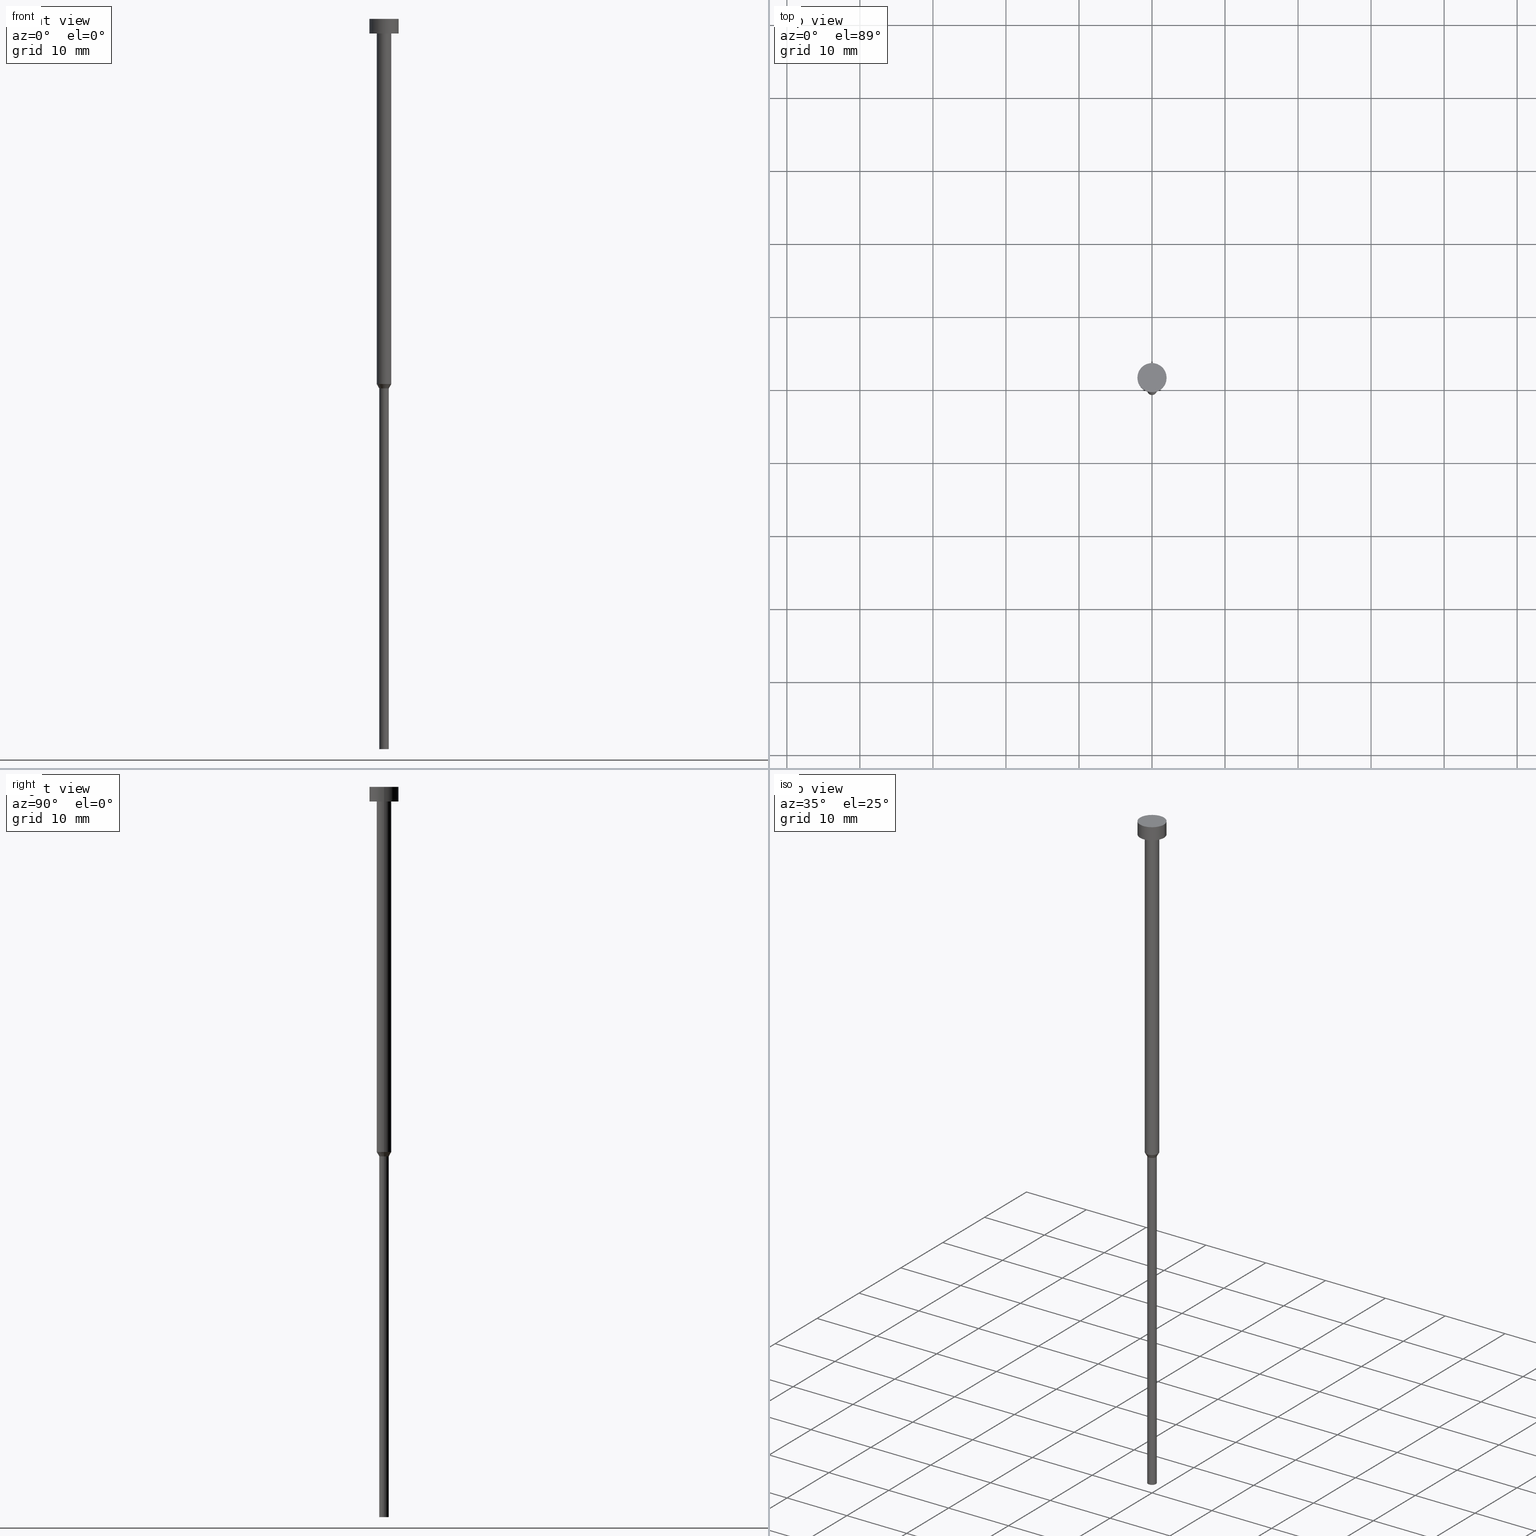
[diagram: canonical four-view strip — front | top / right | iso, engineering-drawing reading convention]
A machine part, canonical four-view strip (front | top / right | iso — engineering-drawing reading convention). The complete STEP part file that produces these views, byte-faithful:
ISO-10303-21;
HEADER;
FILE_DESCRIPTION (( 'STEP AP203' ),
    '1' );
FILE_NAME ('98b2.STEP',
    '2023-02-13T12:40:22',
    ( '' ),
    ( '' ),
    'SwSTEP 2.0',
    'SolidWorks 2019',
    '' );
FILE_SCHEMA (( 'CONFIG_CONTROL_DESIGN' ));
ENDSEC;

DATA;
#1 = PERSON_AND_ORGANIZATION ( #281, #349 ) ;
#2 = PLANE ( 'NONE',  #27 ) ;
#3 = CALENDAR_DATE ( 2023, 13, 2 ) ;
#4 = LINE ( 'NONE', #35, #39 ) ;
#5 = PERSON_AND_ORGANIZATION ( #281, #349 ) ;
#6 =( NAMED_UNIT ( * ) PLANE_ANGLE_UNIT ( ) SI_UNIT ( $, .RADIAN. ) );
#7 = ORIENTED_EDGE ( 'NONE', *, *, #244, .T. ) ;
#8 = EDGE_CURVE ( 'NONE', #11, #106, #150, .T. ) ;
#9 = EDGE_LOOP ( 'NONE', ( #21, #338 ) ) ;
#10 = DIRECTION ( 'NONE',  ( 1.000000000000000000, 0.000000000000000000, 0.000000000000000000 ) ) ;
#11 = VERTEX_POINT ( 'NONE', #62 ) ;
#12 = CIRCLE ( 'NONE', #56, 2.000000000000000000 ) ;
#13 = FACE_BOUND ( 'NONE', #9, .T. ) ;
#14 = PLANE ( 'NONE',  #134 ) ;
#15 = EDGE_CURVE ( 'NONE', #165, #106, #226, .T. ) ;
#16 = DIRECTION ( 'NONE',  ( -0.000000000000000000, -0.000000000000000000, 1.000000000000000000 ) ) ;
#17 = ORIENTED_EDGE ( 'NONE', *, *, #122, .T. ) ;
#18 = DIRECTION ( 'NONE',  ( 0.5000000000000006661, 0.000000000000000000, 0.8660254037844382635 ) ) ;
#19 = DIRECTION ( 'NONE',  ( -0.000000000000000000, -0.000000000000000000, 1.000000000000000000 ) ) ;
#20 = EDGE_CURVE ( 'NONE', #279, #258, #254, .T. ) ;
#21 = ORIENTED_EDGE ( 'NONE', *, *, #37, .T. ) ;
#22 = APPLICATION_PROTOCOL_DEFINITION ( 'international standard', 'config_control_design', 1994, #335 ) ;
#23 = CARTESIAN_POINT ( 'NONE',  ( 0.000000000000000000, 0.000000000000000000, 0.000000000000000000 ) ) ;
#24 = DIRECTION ( 'NONE',  ( 0.000000000000000000, 0.000000000000000000, 1.000000000000000000 ) ) ;
#25 = DIRECTION ( 'NONE',  ( -0.000000000000000000, -0.000000000000000000, 1.000000000000000000 ) ) ;
#26 = EDGE_LOOP ( 'NONE', ( #118, #292 ) ) ;
#27 = AXIS2_PLACEMENT_3D ( 'NONE', #331, #255, #303 ) ;
#28 = ADVANCED_FACE ( 'NONE', ( #145 ), #206, .T. ) ;
#29 = PERSON_AND_ORGANIZATION ( #281, #349 ) ;
#30 = COORDINATED_UNIVERSAL_TIME_OFFSET ( 1, 0, .AHEAD. ) ;
#31 = CARTESIAN_POINT ( 'NONE',  ( 0.000000000000000000, 0.000000000000000000, -100.0000000000000000 ) ) ;
#32 = PERSON_AND_ORGANIZATION_ROLE ( 'classification_officer' ) ;
#33 = ORIENTED_EDGE ( 'NONE', *, *, #342, .T. ) ;
#34 = CIRCLE ( 'NONE', #74, 1.000000000000003553 ) ;
#35 = CARTESIAN_POINT ( 'NONE',  ( -1.000000000000003109, 1.224646799147356905E-16, -50.00000000000000000 ) ) ;
#36 = DIRECTION ( 'NONE',  ( 1.000000000000000000, 0.000000000000000000, 0.000000000000000000 ) ) ;
#37 = EDGE_CURVE ( 'NONE', #295, #103, #34, .T. ) ;
#38 = DIRECTION ( 'NONE',  ( 1.000000000000000000, 0.000000000000000000, 0.000000000000000000 ) ) ;
#39 = VECTOR ( 'NONE', #251, 1000.000000000000000 ) ;
#40 = ORIENTED_EDGE ( 'NONE', *, *, #15, .T. ) ;
#41 = LOCAL_TIME ( 13, 40, 22.00000000000000000, #304 ) ;
#42 = FACE_OUTER_BOUND ( 'NONE', #215, .T. ) ;
#43 = ORIENTED_EDGE ( 'NONE', *, *, #20, .F. ) ;
#44 = EDGE_LOOP ( 'NONE', ( #124, #178, #60, #153 ) ) ;
#45 = DIRECTION ( 'NONE',  ( -0.000000000000000000, -0.000000000000000000, 1.000000000000000000 ) ) ;
#46 = ORIENTED_EDGE ( 'NONE', *, *, #8, .T. ) ;
#47 = CYLINDRICAL_SURFACE ( 'NONE', #324, 2.000000000000000000 ) ;
#48 = APPROVAL_STATUS ( 'not_yet_approved' ) ;
#49 = DIRECTION ( 'NONE',  ( 1.000000000000000000, 0.000000000000000000, 0.000000000000000000 ) ) ;
#50 = VERTEX_POINT ( 'NONE', #91 ) ;
#51 = CARTESIAN_POINT ( 'NONE',  ( -2.000000000000000000, 2.449293598294706414E-16, -2.000000000000000444 ) ) ;
#52 = AXIS2_PLACEMENT_3D ( 'NONE', #31, #138, #329 ) ;
#53 = CC_DESIGN_APPROVAL ( #290, ( #257 ) ) ;
#54 = COORDINATED_UNIVERSAL_TIME_OFFSET ( 1, 0, .AHEAD. ) ;
#55 = CARTESIAN_POINT ( 'NONE',  ( -1.000000000000003331, 1.224646799147357151E-16, 0.000000000000000000 ) ) ;
#56 = AXIS2_PLACEMENT_3D ( 'NONE', #348, #95, #297 ) ;
#57 = CARTESIAN_POINT ( 'NONE',  ( 0.000000000000000000, 0.000000000000000000, -2.000000000000000444 ) ) ;
#58 = FACE_OUTER_BOUND ( 'NONE', #355, .T. ) ;
#59 = ORIENTED_EDGE ( 'NONE', *, *, #15, .F. ) ;
#60 = ORIENTED_EDGE ( 'NONE', *, *, #37, .F. ) ;
#61 = ADVANCED_FACE ( 'NONE', ( #89 ), #14, .T. ) ;
#62 = CARTESIAN_POINT ( 'NONE',  ( -0.6500000000000000222, 7.960204194457795477E-17, -100.0000000000000000 ) ) ;
#63 = CC_DESIGN_DATE_AND_TIME_ASSIGNMENT ( #352, #243, ( #64 ) ) ;
#64 = SECURITY_CLASSIFICATION ( '', '', #136 ) ;
#65 = EDGE_LOOP ( 'NONE', ( #212, #141, #272, #129 ) ) ;
#66 = EDGE_CURVE ( 'NONE', #103, #295, #282, .T. ) ;
#67 = CARTESIAN_POINT ( 'NONE',  ( -0.6500000000000000222, 7.960204194457795477E-17, 0.000000000000000000 ) ) ;
#68 = CC_DESIGN_PERSON_AND_ORGANIZATION_ASSIGNMENT ( #139, #245, ( #257 ) ) ;
#69 = AXIS2_PLACEMENT_3D ( 'NONE', #75, #24, #227 ) ;
#70 = AXIS2_PLACEMENT_3D ( 'NONE', #152, #294, #325 ) ;
#71 = CARTESIAN_POINT ( 'NONE',  ( 2.000000000000000000, 0.000000000000000000, -2.000000000000000444 ) ) ;
#72 = CARTESIAN_POINT ( 'NONE',  ( 1.000000000000003109, 0.000000000000000000, -50.00000000000000000 ) ) ;
#73 = ORIENTED_EDGE ( 'NONE', *, *, #299, .T. ) ;
#74 = AXIS2_PLACEMENT_3D ( 'NONE', #234, #235, #339 ) ;
#75 = CARTESIAN_POINT ( 'NONE',  ( 0.000000000000000000, 0.000000000000000000, 0.000000000000000000 ) ) ;
#76 = CARTESIAN_POINT ( 'NONE',  ( -2.000000000000000000, 2.449293598294706414E-16, 0.000000000000000000 ) ) ;
#77 = CARTESIAN_POINT ( 'NONE',  ( 2.000000000000000000, 0.000000000000000000, 0.000000000000000000 ) ) ;
#78 = CALENDAR_DATE ( 2023, 13, 2 ) ;
#79 = DIRECTION ( 'NONE',  ( -0.000000000000000000, -0.000000000000000000, 1.000000000000000000 ) ) ;
#80 = EDGE_LOOP ( 'NONE', ( #173, #115, #7, #261 ) ) ;
#81 = PERSON_AND_ORGANIZATION ( #281, #349 ) ;
#82 = AXIS2_PLACEMENT_3D ( 'NONE', #285, #236, #10 ) ;
#83 = AXIS2_PLACEMENT_3D ( 'NONE', #171, #246, #220 ) ;
#84 = LINE ( 'NONE', #77, #305 ) ;
#85 = ADVANCED_FACE ( 'NONE', ( #13, #316 ), #260, .T. ) ;
#86 = AXIS2_PLACEMENT_3D ( 'NONE', #88, #172, #237 ) ;
#87 = AXIS2_PLACEMENT_3D ( 'NONE', #57, #112, #190 ) ;
#88 = CARTESIAN_POINT ( 'NONE',  ( 0.000000000000000000, 0.000000000000000000, -50.60621778264911086 ) ) ;
#89 = FACE_OUTER_BOUND ( 'NONE', #26, .T. ) ;
#90 = DIRECTION ( 'NONE',  ( 1.000000000000000000, 0.000000000000000000, 0.000000000000000000 ) ) ;
#91 = CARTESIAN_POINT ( 'NONE',  ( 0.6500000000000000222, 0.000000000000000000, -100.0000000000000000 ) ) ;
#92 = VERTEX_POINT ( 'NONE', #72 ) ;
#93 = CARTESIAN_POINT ( 'NONE',  ( 0.000000000000000000, 0.000000000000000000, 0.000000000000000000 ) ) ;
#94 = AXIS2_PLACEMENT_3D ( 'NONE', #209, #19, #308 ) ;
#95 = DIRECTION ( 'NONE',  ( -0.000000000000000000, -0.000000000000000000, 1.000000000000000000 ) ) ;
#96 = DIRECTION ( 'NONE',  ( -0.000000000000000000, -0.000000000000000000, 1.000000000000000000 ) ) ;
#97 = CARTESIAN_POINT ( 'NONE',  ( -0.6500000000000000222, 7.960204194457795477E-17, -50.60621778264911086 ) ) ;
#98 = PERSON_AND_ORGANIZATION ( #281, #349 ) ;
#99 = ORIENTED_EDGE ( 'NONE', *, *, #319, .F. ) ;
#100 = AXIS2_PLACEMENT_3D ( 'NONE', #242, #96, #214 ) ;
#101 = PERSON_AND_ORGANIZATION ( #281, #349 ) ;
#102 = LINE ( 'NONE', #354, #288 ) ;
#103 = VERTEX_POINT ( 'NONE', #211 ) ;
#104 = CALENDAR_DATE ( 2023, 13, 2 ) ;
#105 = CARTESIAN_POINT ( 'NONE',  ( 0.000000000000000000, 0.000000000000000000, 0.000000000000000000 ) ) ;
#106 = VERTEX_POINT ( 'NONE', #97 ) ;
#107 = APPROVAL_DATE_TIME ( #192, #222 ) ;
#108 = LINE ( 'NONE', #336, #135 ) ;
#109 = ADVANCED_FACE ( 'NONE', ( #188 ), #217, .T. ) ;
#110 = APPROVAL_PERSON_ORGANIZATION ( #101, #167, #216 ) ;
#111 = APPROVAL_STATUS ( 'not_yet_approved' ) ;
#112 = DIRECTION ( 'NONE',  ( -0.000000000000000000, -0.000000000000000000, 1.000000000000000000 ) ) ;
#113 = AXIS2_PLACEMENT_3D ( 'NONE', #182, #265, #156 ) ;
#114 = APPROVAL_PERSON_ORGANIZATION ( #29, #222, #189 ) ;
#115 = ORIENTED_EDGE ( 'NONE', *, *, #169, .T. ) ;
#116 = ORIENTED_EDGE ( 'NONE', *, *, #326, .F. ) ;
#117 = VECTOR ( 'NONE', #18, 1000.000000000000000 ) ;
#118 = ORIENTED_EDGE ( 'NONE', *, *, #20, .T. ) ;
#119 = AXIS2_PLACEMENT_3D ( 'NONE', #340, #204, #289 ) ;
#120 = EDGE_LOOP ( 'NONE', ( #205, #252 ) ) ;
#121 = CARTESIAN_POINT ( 'NONE',  ( 0.000000000000000000, 0.000000000000000000, 0.000000000000000000 ) ) ;
#122 = EDGE_CURVE ( 'NONE', #266, #92, #274, .T. ) ;
#123 = FACE_OUTER_BOUND ( 'NONE', #80, .T. ) ;
#124 = ORIENTED_EDGE ( 'NONE', *, *, #344, .T. ) ;
#125 = ADVANCED_BREP_SHAPE_REPRESENTATION ( '98b2', ( #233, #69 ), #232 ) ;
#126 = CYLINDRICAL_SURFACE ( 'NONE', #213, 0.6500000000000000222 ) ;
#127 = ORIENTED_EDGE ( 'NONE', *, *, #262, .T. ) ;
#128 = CIRCLE ( 'NONE', #52, 0.6500000000000000222 ) ;
#129 = ORIENTED_EDGE ( 'NONE', *, *, #198, .F. ) ;
#130 = EDGE_CURVE ( 'NONE', #106, #165, #327, .T. ) ;
#131 = SHAPE_DEFINITION_REPRESENTATION ( #341, #125 ) ;
#132 = PERSON_AND_ORGANIZATION_ROLE ( 'creator' ) ;
#133 = LINE ( 'NONE', #55, #241 ) ;
#134 = AXIS2_PLACEMENT_3D ( 'NONE', #202, #286, #38 ) ;
#135 = VECTOR ( 'NONE', #273, 1000.000000000000000 ) ;
#136 = SECURITY_CLASSIFICATION_LEVEL ( 'unclassified' ) ;
#137 = CARTESIAN_POINT ( 'NONE',  ( 0.000000000000000000, 0.000000000000000000, -2.000000000000000444 ) ) ;
#138 = DIRECTION ( 'NONE',  ( -0.000000000000000000, -0.000000000000000000, 1.000000000000000000 ) ) ;
#139 = PERSON_AND_ORGANIZATION ( #281, #349 ) ;
#140 = CC_DESIGN_DATE_AND_TIME_ASSIGNMENT ( #309, #333, ( #257 ) ) ;
#141 = ORIENTED_EDGE ( 'NONE', *, *, #351, .T. ) ;
#142 = DIRECTION ( 'NONE',  ( -0.000000000000000000, -0.000000000000000000, 1.000000000000000000 ) ) ;
#143 = EDGE_CURVE ( 'NONE', #248, #258, #157, .T. ) ;
#144 = CIRCLE ( 'NONE', #149, 0.6500000000000000222 ) ;
#145 = FACE_OUTER_BOUND ( 'NONE', #65, .T. ) ;
#146 = DIRECTION ( 'NONE',  ( -0.000000000000000000, -0.000000000000000000, 1.000000000000000000 ) ) ;
#147 = ADVANCED_FACE ( 'NONE', ( #270 ), #269, .T. ) ;
#148 = EDGE_LOOP ( 'NONE', ( #116, #343 ) ) ;
#149 = AXIS2_PLACEMENT_3D ( 'NONE', #184, #16, #267 ) ;
#150 = LINE ( 'NONE', #67, #350 ) ;
#151 = CIRCLE ( 'NONE', #247, 1.000000000000003109 ) ;
#152 = CARTESIAN_POINT ( 'NONE',  ( 0.000000000000000000, 0.000000000000000000, -50.60621778264911086 ) ) ;
#153 = ORIENTED_EDGE ( 'NONE', *, *, #299, .F. ) ;
#154 = CC_DESIGN_PERSON_AND_ORGANIZATION_ASSIGNMENT ( #81, #132, ( #293 ) ) ;
#155 = CARTESIAN_POINT ( 'NONE',  ( 0.6500000000000000222, 0.000000000000000000, -50.60621778264911086 ) ) ;
#156 = DIRECTION ( 'NONE',  ( 1.000000000000000000, 0.000000000000000000, 0.000000000000000000 ) ) ;
#157 = LINE ( 'NONE', #76, #207 ) ;
#158 = VERTEX_POINT ( 'NONE', #71 ) ;
#159 = APPROVAL_DATE_TIME ( #250, #290 ) ;
#160 = CARTESIAN_POINT ( 'NONE',  ( -2.000000000000000000, 2.449293598294706414E-16, -2.449293598294705921E-16 ) ) ;
#161 = LOCAL_TIME ( 13, 40, 22.00000000000000000, #307 ) ;
#162 = EDGE_LOOP ( 'NONE', ( #33, #291, #43, #218 ) ) ;
#163 = DATE_AND_TIME ( #3, #240 ) ;
#164 = FACE_OUTER_BOUND ( 'NONE', #337, .T. ) ;
#165 = VERTEX_POINT ( 'NONE', #155 ) ;
#166 = PERSON_AND_ORGANIZATION_ROLE ( 'design_supplier' ) ;
#167 = APPROVAL ( #48, 'NEUR�EN�' ) ;
#168 = CARTESIAN_POINT ( 'NONE',  ( 0.000000000000000000, 0.000000000000000000, -50.00000000000000000 ) ) ;
#169 = EDGE_CURVE ( 'NONE', #11, #50, #144, .T. ) ;
#170 = ORIENTED_EDGE ( 'NONE', *, *, #185, .T. ) ;
#171 = CARTESIAN_POINT ( 'NONE',  ( 0.000000000000000000, 0.000000000000000000, 0.000000000000000000 ) ) ;
#172 = DIRECTION ( 'NONE',  ( -0.000000000000000000, -0.000000000000000000, 1.000000000000000000 ) ) ;
#173 = ORIENTED_EDGE ( 'NONE', *, *, #8, .F. ) ;
#174 = CC_DESIGN_SECURITY_CLASSIFICATION ( #64, ( #293 ) ) ;
#175 = LOCAL_TIME ( 13, 40, 22.00000000000000000, #30 ) ;
#176 = CARTESIAN_POINT ( 'NONE',  ( 0.000000000000000000, 0.000000000000000000, -2.000000000000000444 ) ) ;
#177 = UNCERTAINTY_MEASURE_WITH_UNIT (LENGTH_MEASURE( 1.000000000000000082E-05 ), #306, 'distance_accuracy_value', 'NONE');
#178 = ORIENTED_EDGE ( 'NONE', *, *, #319, .T. ) ;
#179 = DIRECTION ( 'NONE',  ( -0.000000000000000000, -0.000000000000000000, 1.000000000000000000 ) ) ;
#180 = ADVANCED_FACE ( 'NONE', ( #301 ), #47, .T. ) ;
#181 = DIRECTION ( 'NONE',  ( 1.000000000000000000, 0.000000000000000000, 0.000000000000000000 ) ) ;
#182 = CARTESIAN_POINT ( 'NONE',  ( 0.000000000000000000, 0.000000000000000000, -50.00000000000000000 ) ) ;
#183 = AXIS2_PLACEMENT_3D ( 'NONE', #121, #186, #328 ) ;
#184 = CARTESIAN_POINT ( 'NONE',  ( 0.000000000000000000, 0.000000000000000000, -100.0000000000000000 ) ) ;
#185 = EDGE_CURVE ( 'NONE', #165, #92, #239, .T. ) ;
#186 = DIRECTION ( 'NONE',  ( -0.000000000000000000, -0.000000000000000000, 1.000000000000000000 ) ) ;
#187 = APPROVAL_ROLE ( '' ) ;
#188 = FACE_OUTER_BOUND ( 'NONE', #256, .T. ) ;
#189 = APPROVAL_ROLE ( '' ) ;
#190 = DIRECTION ( 'NONE',  ( 1.000000000000000000, 0.000000000000000000, 0.000000000000000000 ) ) ;
#191 = ADVANCED_FACE ( 'NONE', ( #123 ), #126, .T. ) ;
#192 = DATE_AND_TIME ( #330, #225 ) ;
#193 = DIRECTION ( 'NONE',  ( 1.000000000000000000, 0.000000000000000000, 0.000000000000000000 ) ) ;
#194 = ORIENTED_EDGE ( 'NONE', *, *, #244, .F. ) ;
#195 = CC_DESIGN_PERSON_AND_ORGANIZATION_ASSIGNMENT ( #98, #32, ( #64 ) ) ;
#196 = CALENDAR_DATE ( 2023, 13, 2 ) ;
#197 = DIRECTION ( 'NONE',  ( 1.000000000000000000, 0.000000000000000000, 0.000000000000000000 ) ) ;
#198 = EDGE_CURVE ( 'NONE', #258, #279, #12, .T. ) ;
#199 = CARTESIAN_POINT ( 'NONE',  ( 2.000000000000000000, 0.000000000000000000, -2.449293598294705921E-16 ) ) ;
#200 = CC_DESIGN_APPROVAL ( #167, ( #64 ) ) ;
#201 = ORIENTED_EDGE ( 'NONE', *, *, #66, .F. ) ;
#202 = CARTESIAN_POINT ( 'NONE',  ( 0.000000000000000000, 0.000000000000000000, -1.224646799147352961E-16 ) ) ;
#203 = ADVANCED_FACE ( 'NONE', ( #42 ), #317, .T. ) ;
#204 = DIRECTION ( 'NONE',  ( 0.000000000000000000, 0.000000000000000000, -1.000000000000000000 ) ) ;
#205 = ORIENTED_EDGE ( 'NONE', *, *, #342, .F. ) ;
#206 = CYLINDRICAL_SURFACE ( 'NONE', #82, 2.000000000000000000 ) ;
#207 = VECTOR ( 'NONE', #208, 1000.000000000000000 ) ;
#208 = DIRECTION ( 'NONE',  ( -0.000000000000000000, -0.000000000000000000, 1.000000000000000000 ) ) ;
#209 = CARTESIAN_POINT ( 'NONE',  ( 0.000000000000000000, 0.000000000000000000, -50.00000000000000000 ) ) ;
#210 = CIRCLE ( 'NONE', #268, 2.000000000000000000 ) ;
#211 = CARTESIAN_POINT ( 'NONE',  ( -1.000000000000003553, 1.224646799147357398E-16, -2.000000000000000444 ) ) ;
#212 = ORIENTED_EDGE ( 'NONE', *, *, #143, .F. ) ;
#213 = AXIS2_PLACEMENT_3D ( 'NONE', #93, #321, #181 ) ;
#214 = DIRECTION ( 'NONE',  ( 1.000000000000000000, 0.000000000000000000, 0.000000000000000000 ) ) ;
#215 = EDGE_LOOP ( 'NONE', ( #263, #320, #170, #314 ) ) ;
#216 = APPROVAL_ROLE ( '' ) ;
#217 = CONICAL_SURFACE ( 'NONE', #100, 1.000000000000003109, 0.5235987755982995928 ) ;
#218 = ORIENTED_EDGE ( 'NONE', *, *, #332, .F. ) ;
#219 = APPROVAL_DATE_TIME ( #163, #167 ) ;
#220 = DIRECTION ( 'NONE',  ( 1.000000000000000000, 0.000000000000000000, 0.000000000000000000 ) ) ;
#221 = PERSON_AND_ORGANIZATION ( #281, #349 ) ;
#222 = APPROVAL ( #271, 'NEUR�EN�' ) ;
#223 = PERSON_AND_ORGANIZATION_ROLE ( 'design_owner' ) ;
#224 = CARTESIAN_POINT ( 'NONE',  ( -1.000000000000003109, 1.224646799147356905E-16, -50.00000000000000000 ) ) ;
#225 = LOCAL_TIME ( 13, 40, 22.00000000000000000, #300 ) ;
#226 = CIRCLE ( 'NONE', #86, 0.6500000000000000222 ) ;
#227 = DIRECTION ( 'NONE',  ( 1.000000000000000000, 0.000000000000000000, 0.000000000000000000 ) ) ;
#228 =( NAMED_UNIT ( * ) SI_UNIT ( $, .STERADIAN. ) SOLID_ANGLE_UNIT ( ) );
#229 = DIRECTION ( 'NONE',  ( -0.000000000000000000, -0.000000000000000000, 1.000000000000000000 ) ) ;
#230 = ORIENTED_EDGE ( 'NONE', *, *, #185, .F. ) ;
#231 = CC_DESIGN_APPROVAL ( #222, ( #293 ) ) ;
#232 =( GEOMETRIC_REPRESENTATION_CONTEXT ( 3 ) GLOBAL_UNCERTAINTY_ASSIGNED_CONTEXT ( ( #177 ) ) GLOBAL_UNIT_ASSIGNED_CONTEXT ( ( #306, #6, #228 ) ) REPRESENTATION_CONTEXT ( 'NONE', 'WORKASPACE' ) );
#233 = MANIFOLD_SOLID_BREP ( 'Rotovat1', #287 ) ;
#234 = CARTESIAN_POINT ( 'NONE',  ( 0.000000000000000000, 0.000000000000000000, -2.000000000000000444 ) ) ;
#235 = DIRECTION ( 'NONE',  ( -0.000000000000000000, -0.000000000000000000, 1.000000000000000000 ) ) ;
#236 = DIRECTION ( 'NONE',  ( -0.000000000000000000, -0.000000000000000000, 1.000000000000000000 ) ) ;
#237 = DIRECTION ( 'NONE',  ( 1.000000000000000000, 0.000000000000000000, 0.000000000000000000 ) ) ;
#238 = DESIGN_CONTEXT ( 'detailed design', #335, 'design' ) ;
#239 = LINE ( 'NONE', #345, #117 ) ;
#240 = LOCAL_TIME ( 13, 40, 22.00000000000000000, #54 ) ;
#241 = VECTOR ( 'NONE', #142, 1000.000000000000000 ) ;
#242 = CARTESIAN_POINT ( 'NONE',  ( 0.000000000000000000, 0.000000000000000000, -50.00000000000000000 ) ) ;
#243 = DATE_TIME_ROLE ( 'classification_date' ) ;
#244 = EDGE_CURVE ( 'NONE', #50, #165, #102, .T. ) ;
#245 = PERSON_AND_ORGANIZATION_ROLE ( 'creator' ) ;
#246 = DIRECTION ( 'NONE',  ( -0.000000000000000000, -0.000000000000000000, 1.000000000000000000 ) ) ;
#247 = AXIS2_PLACEMENT_3D ( 'NONE', #168, #79, #280 ) ;
#248 = VERTEX_POINT ( 'NONE', #51 ) ;
#249 = DIRECTION ( 'NONE',  ( -0.000000000000000000, -0.000000000000000000, 1.000000000000000000 ) ) ;
#250 = DATE_AND_TIME ( #104, #161 ) ;
#251 = DIRECTION ( 'NONE',  ( -0.5000000000000006661, 6.123233995736774664E-17, 0.8660254037844382635 ) ) ;
#252 = ORIENTED_EDGE ( 'NONE', *, *, #351, .F. ) ;
#253 = ADVANCED_FACE ( 'NONE', ( #164 ), #311, .T. ) ;
#254 = CIRCLE ( 'NONE', #298, 2.000000000000000000 ) ;
#255 = DIRECTION ( 'NONE',  ( 0.000000000000000000, 0.000000000000000000, -1.000000000000000000 ) ) ;
#256 = EDGE_LOOP ( 'NONE', ( #40, #127, #302, #230 ) ) ;
#257 = PRODUCT_DEFINITION ( 'NEZN�M�', '', #293, #238 ) ;
#258 = VERTEX_POINT ( 'NONE', #160 ) ;
#259 = AXIS2_PLACEMENT_3D ( 'NONE', #105, #25, #197 ) ;
#260 = PLANE ( 'NONE',  #119 ) ;
#261 = ORIENTED_EDGE ( 'NONE', *, *, #130, .F. ) ;
#262 = EDGE_CURVE ( 'NONE', #106, #266, #4, .T. ) ;
#263 = ORIENTED_EDGE ( 'NONE', *, *, #262, .F. ) ;
#264 = CARTESIAN_POINT ( 'NONE',  ( 0.000000000000000000, 0.000000000000000000, -2.449293598294705921E-16 ) ) ;
#265 = DIRECTION ( 'NONE',  ( -0.000000000000000000, -0.000000000000000000, 1.000000000000000000 ) ) ;
#266 = VERTEX_POINT ( 'NONE', #224 ) ;
#267 = DIRECTION ( 'NONE',  ( 1.000000000000000000, 0.000000000000000000, 0.000000000000000000 ) ) ;
#268 = AXIS2_PLACEMENT_3D ( 'NONE', #137, #278, #193 ) ;
#269 = CYLINDRICAL_SURFACE ( 'NONE', #183, 1.000000000000003331 ) ;
#270 = FACE_OUTER_BOUND ( 'NONE', #44, .T. ) ;
#271 = APPROVAL_STATUS ( 'not_yet_approved' ) ;
#272 = ORIENTED_EDGE ( 'NONE', *, *, #332, .T. ) ;
#273 = DIRECTION ( 'NONE',  ( -0.000000000000000000, -0.000000000000000000, 1.000000000000000000 ) ) ;
#274 = CIRCLE ( 'NONE', #113, 1.000000000000003109 ) ;
#275 = APPROVAL_PERSON_ORGANIZATION ( #1, #290, #187 ) ;
#276 = FACE_OUTER_BOUND ( 'NONE', #148, .T. ) ;
#277 = ORIENTED_EDGE ( 'NONE', *, *, #326, .T. ) ;
#278 = DIRECTION ( 'NONE',  ( -0.000000000000000000, -0.000000000000000000, 1.000000000000000000 ) ) ;
#279 = VERTEX_POINT ( 'NONE', #199 ) ;
#280 = DIRECTION ( 'NONE',  ( 1.000000000000000000, 0.000000000000000000, 0.000000000000000000 ) ) ;
#281 = PERSON ( 'NEUR�EN�', 'NEUR�EN�', 'NEUR�EN�', ('NEUR�EN�'), ('NEUR�EN�'), ('NEUR�EN�') ) ;
#282 = CIRCLE ( 'NONE', #312, 1.000000000000003553 ) ;
#283 = APPLICATION_PROTOCOL_DEFINITION ( 'international standard', 'config_control_design', 1994, #318 ) ;
#284 = ADVANCED_FACE ( 'NONE', ( #276 ), #2, .T. ) ;
#285 = CARTESIAN_POINT ( 'NONE',  ( 0.000000000000000000, 0.000000000000000000, 0.000000000000000000 ) ) ;
#286 = DIRECTION ( 'NONE',  ( 0.000000000000000000, -0.000000000000000000, 1.000000000000000000 ) ) ;
#287 = CLOSED_SHELL ( 'NONE', ( #180, #147, #109, #322, #284, #191, #203, #253, #85, #28, #61 ) ) ;
#288 = VECTOR ( 'NONE', #229, 1000.000000000000000 ) ;
#289 = DIRECTION ( 'NONE',  ( -1.000000000000000000, 0.000000000000000000, -0.000000000000000000 ) ) ;
#290 = APPROVAL ( #111, 'NEUR�EN�' ) ;
#291 = ORIENTED_EDGE ( 'NONE', *, *, #143, .T. ) ;
#292 = ORIENTED_EDGE ( 'NONE', *, *, #198, .T. ) ;
#293 = PRODUCT_DEFINITION_FORMATION_WITH_SPECIFIED_SOURCE ( 'LIBOVOLN�', '', #346, .NOT_KNOWN. ) ;
#294 = DIRECTION ( 'NONE',  ( -0.000000000000000000, -0.000000000000000000, 1.000000000000000000 ) ) ;
#295 = VERTEX_POINT ( 'NONE', #334 ) ;
#296 = PRODUCT_RELATED_PRODUCT_CATEGORY ( 'detail', '', ( #346 ) ) ;
#297 = DIRECTION ( 'NONE',  ( 1.000000000000000000, 0.000000000000000000, 0.000000000000000000 ) ) ;
#298 = AXIS2_PLACEMENT_3D ( 'NONE', #264, #179, #36 ) ;
#299 = EDGE_CURVE ( 'NONE', #92, #295, #108, .T. ) ;
#300 = COORDINATED_UNIVERSAL_TIME_OFFSET ( 1, 0, .AHEAD. ) ;
#301 = FACE_OUTER_BOUND ( 'NONE', #162, .T. ) ;
#302 = ORIENTED_EDGE ( 'NONE', *, *, #344, .F. ) ;
#303 = DIRECTION ( 'NONE',  ( -1.000000000000000000, 0.000000000000000000, -0.000000000000000000 ) ) ;
#304 = COORDINATED_UNIVERSAL_TIME_OFFSET ( 1, 0, .AHEAD. ) ;
#305 = VECTOR ( 'NONE', #249, 1000.000000000000000 ) ;
#306 =( LENGTH_UNIT ( ) NAMED_UNIT ( * ) SI_UNIT ( .MILLI., .METRE. ) );
#307 = COORDINATED_UNIVERSAL_TIME_OFFSET ( 1, 0, .AHEAD. ) ;
#308 = DIRECTION ( 'NONE',  ( 1.000000000000000000, 0.000000000000000000, 0.000000000000000000 ) ) ;
#309 = DATE_AND_TIME ( #78, #175 ) ;
#310 = CYLINDRICAL_SURFACE ( 'NONE', #83, 0.6500000000000000222 ) ;
#311 = CYLINDRICAL_SURFACE ( 'NONE', #259, 1.000000000000003331 ) ;
#312 = AXIS2_PLACEMENT_3D ( 'NONE', #176, #146, #90 ) ;
#313 = CIRCLE ( 'NONE', #87, 2.000000000000000000 ) ;
#314 = ORIENTED_EDGE ( 'NONE', *, *, #122, .F. ) ;
#315 = DIRECTION ( 'NONE',  ( -0.000000000000000000, -0.000000000000000000, 1.000000000000000000 ) ) ;
#316 = FACE_OUTER_BOUND ( 'NONE', #120, .T. ) ;
#317 = CONICAL_SURFACE ( 'NONE', #94, 1.000000000000003109, 0.5235987755982995928 ) ;
#318 = APPLICATION_CONTEXT ( 'configuration controlled 3d designs of mechanical parts and assemblies' ) ;
#319 = EDGE_CURVE ( 'NONE', #266, #103, #133, .T. ) ;
#320 = ORIENTED_EDGE ( 'NONE', *, *, #130, .T. ) ;
#321 = DIRECTION ( 'NONE',  ( -0.000000000000000000, -0.000000000000000000, 1.000000000000000000 ) ) ;
#322 = ADVANCED_FACE ( 'NONE', ( #58 ), #310, .T. ) ;
#323 = CC_DESIGN_PERSON_AND_ORGANIZATION_ASSIGNMENT ( #5, #166, ( #293 ) ) ;
#324 = AXIS2_PLACEMENT_3D ( 'NONE', #23, #45, #49 ) ;
#325 = DIRECTION ( 'NONE',  ( 1.000000000000000000, 0.000000000000000000, 0.000000000000000000 ) ) ;
#326 = EDGE_CURVE ( 'NONE', #50, #11, #128, .T. ) ;
#327 = CIRCLE ( 'NONE', #70, 0.6500000000000000222 ) ;
#328 = DIRECTION ( 'NONE',  ( 1.000000000000000000, 0.000000000000000000, 0.000000000000000000 ) ) ;
#329 = DIRECTION ( 'NONE',  ( 1.000000000000000000, 0.000000000000000000, 0.000000000000000000 ) ) ;
#330 = CALENDAR_DATE ( 2023, 13, 2 ) ;
#331 = CARTESIAN_POINT ( 'NONE',  ( 0.000000000000000000, 0.000000000000000000, -100.0000000000000000 ) ) ;
#332 = EDGE_CURVE ( 'NONE', #158, #279, #84, .T. ) ;
#333 = DATE_TIME_ROLE ( 'creation_date' ) ;
#334 = CARTESIAN_POINT ( 'NONE',  ( 1.000000000000003553, 0.000000000000000000, -2.000000000000000444 ) ) ;
#335 = APPLICATION_CONTEXT ( 'configuration controlled 3d designs of mechanical parts and assemblies' ) ;
#336 = CARTESIAN_POINT ( 'NONE',  ( 1.000000000000003331, 0.000000000000000000, 0.000000000000000000 ) ) ;
#337 = EDGE_LOOP ( 'NONE', ( #99, #17, #73, #201 ) ) ;
#338 = ORIENTED_EDGE ( 'NONE', *, *, #66, .T. ) ;
#339 = DIRECTION ( 'NONE',  ( 1.000000000000000000, 0.000000000000000000, 0.000000000000000000 ) ) ;
#340 = CARTESIAN_POINT ( 'NONE',  ( 0.000000000000000000, -2.000000000000000000, -2.000000000000000444 ) ) ;
#341 = PRODUCT_DEFINITION_SHAPE ( 'NONE', 'NONE',  #257 ) ;
#342 = EDGE_CURVE ( 'NONE', #158, #248, #313, .T. ) ;
#343 = ORIENTED_EDGE ( 'NONE', *, *, #169, .F. ) ;
#344 = EDGE_CURVE ( 'NONE', #92, #266, #151, .T. ) ;
#345 = CARTESIAN_POINT ( 'NONE',  ( 1.000000000000003109, 0.000000000000000000, -50.00000000000000000 ) ) ;
#346 = PRODUCT ( '98b2', '98b2', '', ( #353 ) ) ;
#347 = CC_DESIGN_PERSON_AND_ORGANIZATION_ASSIGNMENT ( #221, #223, ( #346 ) ) ;
#348 = CARTESIAN_POINT ( 'NONE',  ( 0.000000000000000000, 0.000000000000000000, -2.449293598294705921E-16 ) ) ;
#349 = ORGANIZATION ( 'NEUR�EN�', 'NEUR�EN�', '' ) ;
#350 = VECTOR ( 'NONE', #315, 1000.000000000000000 ) ;
#351 = EDGE_CURVE ( 'NONE', #248, #158, #210, .T. ) ;
#352 = DATE_AND_TIME ( #196, #41 ) ;
#353 = MECHANICAL_CONTEXT ( 'NONE', #318, 'mechanical' ) ;
#354 = CARTESIAN_POINT ( 'NONE',  ( 0.6500000000000000222, 0.000000000000000000, 0.000000000000000000 ) ) ;
#355 = EDGE_LOOP ( 'NONE', ( #277, #46, #59, #194 ) ) ;
ENDSEC;
END-ISO-10303-21;
